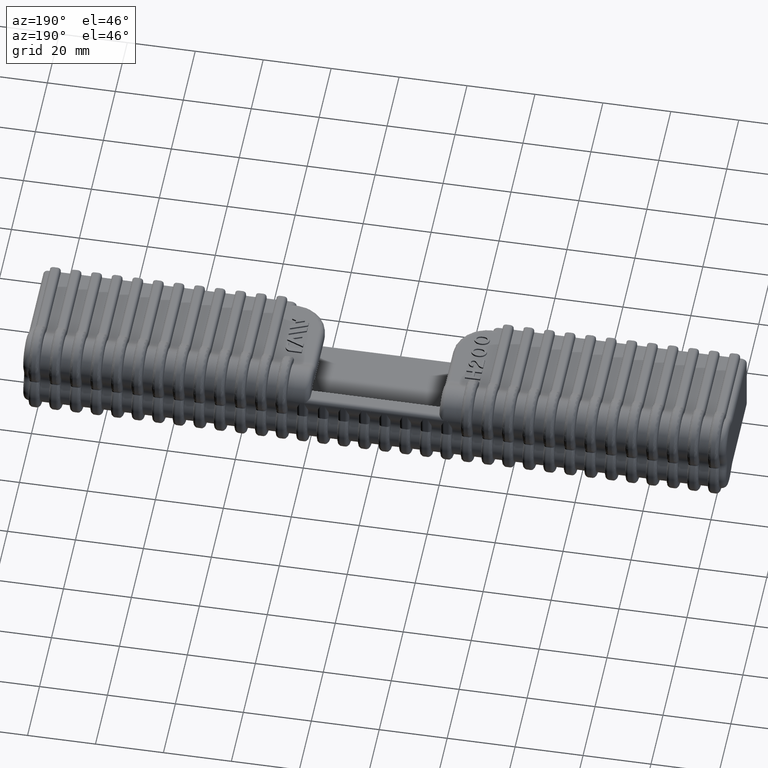
[diagram: clean part render]
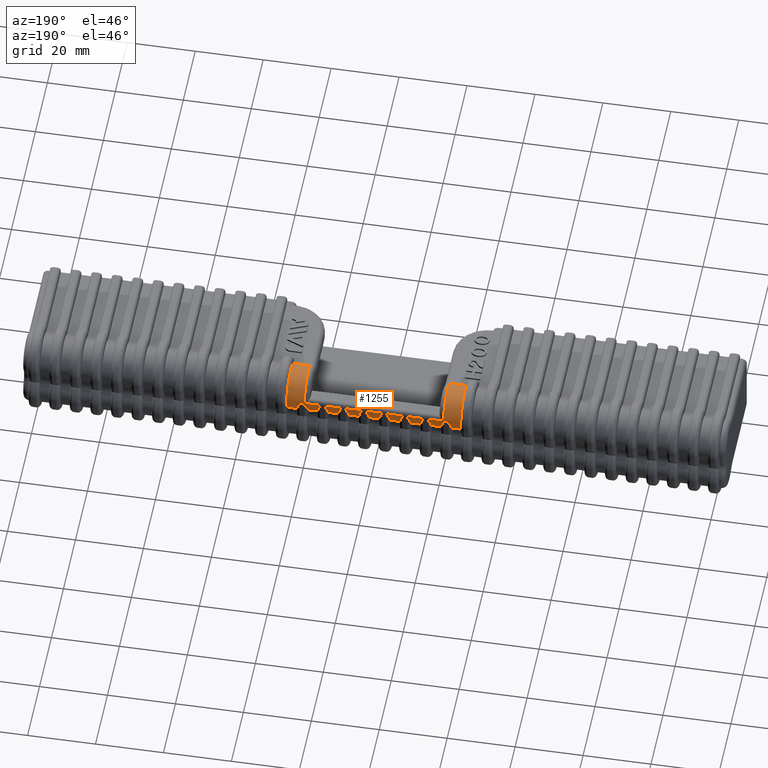
[diagram: same view with one face highlighted and labeled with its STEP entity id]
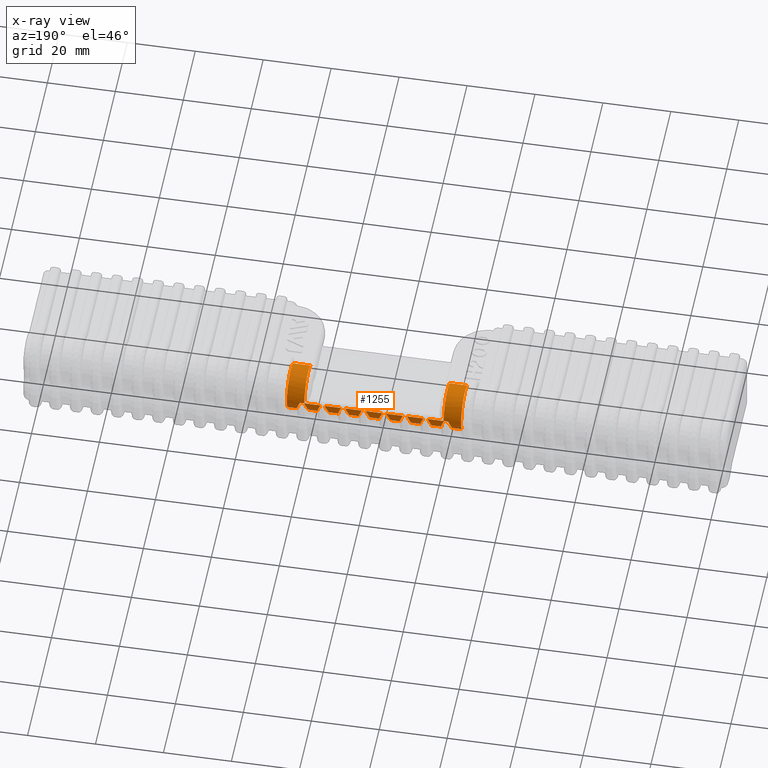
[diagram: x-ray of the same camera — body ghosted, the highlighted face saturated]
A machine part, auxiliary view. The second image highlights one B-rep face of the part: STEP entity #1255.
The next image is the same camera in x-ray: the body ghosted, the highlighted face saturated — about 0% of this face is hidden behind the body in this view.
In plain terms, the highlighted cylindrical surface (edge-blend (fillet) strip) has radius 6.5 mm, axis along (1, -0, 0).
Its self-contained STEP definition (entity closure, byte-faithful):
#1255 = ADVANCED_FACE( '', ( #3309 ), #3310, .T. );
#3309 = FACE_OUTER_BOUND( '', #5531, .T. );
#3310 = CYLINDRICAL_SURFACE( '', #5532, 6.50000000000001 );
#5531 = EDGE_LOOP( '', ( #13861, #13862, #13863, #13864, #13865, #13866, #13867, #13868, #13869, #13870, #13871, #13872, #13873, #13874, #13875, #13876, #13877, #13878, #13879, #13880, #13881, #13882, #13883, #13884, #13885, #13886, #13887, #13888, #13889, #13890, #13891, #13892, #13893, #13894, #13895, #13896, #13897, #13898, #13899, #13900, #13901, #13902, #13903, #13904, #13905, #13906, #13907, #13908, #13909, #13910, #13911, #13912, #13913, #13914, #13915, #13916 ) );
#5532 = AXIS2_PLACEMENT_3D( '', #13917, #13918, #13919 );
#13861 = ORIENTED_EDGE( '', *, *, #17715, .T. );
#13862 = ORIENTED_EDGE( '', *, *, #16381, .T. );
#13863 = ORIENTED_EDGE( '', *, *, #15929, .T. );
#13864 = ORIENTED_EDGE( '', *, *, #17801, .T. );
#13865 = ORIENTED_EDGE( '', *, *, #18030, .T. );
#13866 = ORIENTED_EDGE( '', *, *, #16948, .F. );
#13867 = ORIENTED_EDGE( '', *, *, #15616, .T. );
#13868 = ORIENTED_EDGE( '', *, *, #16955, .T. );
#13869 = ORIENTED_EDGE( '', *, *, #17674, .T. );
#13870 = ORIENTED_EDGE( '', *, *, #16953, .F. );
#13871 = ORIENTED_EDGE( '', *, *, #18031, .T. );
#13872 = ORIENTED_EDGE( '', *, *, #16578, .F. );
#13873 = ORIENTED_EDGE( '', *, *, #17675, .T. );
#13874 = ORIENTED_EDGE( '', *, *, #16573, .T. );
#13875 = ORIENTED_EDGE( '', *, *, #16566, .T. );
#13876 = ORIENTED_EDGE( '', *, *, #16572, .F. );
#13877 = ORIENTED_EDGE( '', *, *, #18032, .T. );
#13878 = ORIENTED_EDGE( '', *, *, #16944, .F. );
#13879 = ORIENTED_EDGE( '', *, *, #16469, .T. );
#13880 = ORIENTED_EDGE( '', *, *, #16580, .T. );
#13881 = ORIENTED_EDGE( '', *, *, #16463, .T. );
#13882 = ORIENTED_EDGE( '', *, *, #16947, .F. );
#13883 = ORIENTED_EDGE( '', *, *, #18033, .T. );
#13884 = ORIENTED_EDGE( '', *, *, #16442, .F. );
#13885 = ORIENTED_EDGE( '', *, *, #16459, .T. );
#13886 = ORIENTED_EDGE( '', *, *, #16434, .T. );
#13887 = ORIENTED_EDGE( '', *, *, #16460, .T. );
#13888 = ORIENTED_EDGE( '', *, *, #16432, .F. );
#13889 = ORIENTED_EDGE( '', *, *, #18034, .T. );
#13890 = ORIENTED_EDGE( '', *, *, #16935, .F. );
#13891 = ORIENTED_EDGE( '', *, *, #17677, .T. );
#13892 = ORIENTED_EDGE( '', *, *, #16444, .T. );
#13893 = ORIENTED_EDGE( '', *, *, #17678, .T. );
#13894 = ORIENTED_EDGE( '', *, *, #16942, .F. );
#13895 = ORIENTED_EDGE( '', *, *, #18035, .T. );
#13896 = ORIENTED_EDGE( '', *, *, #16607, .F. );
#13897 = ORIENTED_EDGE( '', *, *, #17680, .T. );
#13898 = ORIENTED_EDGE( '', *, *, #16930, .T. );
#13899 = ORIENTED_EDGE( '', *, *, #17681, .T. );
#13900 = ORIENTED_EDGE( '', *, *, #16928, .F. );
#13901 = ORIENTED_EDGE( '', *, *, #18036, .T. );
#13902 = ORIENTED_EDGE( '', *, *, #15702, .F. );
#13903 = ORIENTED_EDGE( '', *, *, #15658, .T. );
#13904 = ORIENTED_EDGE( '', *, *, #16613, .T. );
#13905 = ORIENTED_EDGE( '', *, *, #15647, .T. );
#13906 = ORIENTED_EDGE( '', *, *, #16615, .F. );
#13907 = ORIENTED_EDGE( '', *, *, #18037, .T. );
#13908 = ORIENTED_EDGE( '', *, *, #16621, .F. );
#13909 = ORIENTED_EDGE( '', *, *, #15653, .T. );
#13910 = ORIENTED_EDGE( '', *, *, #15705, .T. );
#13911 = ORIENTED_EDGE( '', *, *, #17682, .T. );
#13912 = ORIENTED_EDGE( '', *, *, #15710, .F. );
#13913 = ORIENTED_EDGE( '', *, *, #18038, .T. );
#13914 = ORIENTED_EDGE( '', *, *, #17789, .F. );
#13915 = ORIENTED_EDGE( '', *, *, #18039, .T. );
#13916 = ORIENTED_EDGE( '', *, *, #16376, .T. );
#13917 = CARTESIAN_POINT( '', ( 103.500000000000, 28.7979184719829, 5.29791847198289 ) );
#13918 = DIRECTION( '', ( 1.00000000000000, -5.15199234088901E-017, 2.24223605031627E-016 ) );
#13919 = DIRECTION( '', ( -5.15199234088901E-017, -1.00000000000000, 1.83690953073357E-016 ) );
#15616 = EDGE_CURVE( '', #18995, #18993, #18996, .T. );
#15647 = EDGE_CURVE( '', #19053, #19051, #19054, .T. );
#15653 = EDGE_CURVE( '', #19065, #19063, #19066, .T. );
#15658 = EDGE_CURVE( '', #19075, #19073, #19076, .T. );
#15702 = EDGE_CURVE( '', #19075, #19149, #19150, .F. );
#15705 = EDGE_CURVE( '', #19063, #19153, #19154, .T. );
#15710 = EDGE_CURVE( '', #19161, #19163, #19164, .F. );
#15929 = EDGE_CURVE( '', #19528, #19529, #19530, .F. );
#16376 = EDGE_CURVE( '', #20264, #20262, #20265, .F. );
#16381 = EDGE_CURVE( '', #20270, #19528, #20271, .F. );
#16432 = EDGE_CURVE( '', #20352, #20354, #20355, .F. );
#16434 = EDGE_CURVE( '', #20357, #20358, #20359, .T. );
#16442 = EDGE_CURVE( '', #20368, #20370, #20371, .F. );
#16444 = EDGE_CURVE( '', #20373, #20374, #20375, .T. );
#16459 = EDGE_CURVE( '', #20368, #20357, #20400, .T. );
#16460 = EDGE_CURVE( '', #20358, #20354, #20401, .T. );
#16463 = EDGE_CURVE( '', #20407, #20405, #20408, .T. );
#16469 = EDGE_CURVE( '', #20418, #20416, #20419, .T. );
#16566 = EDGE_CURVE( '', #20583, #20581, #20584, .T. );
#16572 = EDGE_CURVE( '', #20590, #20581, #20592, .F. );
#16573 = EDGE_CURVE( '', #20593, #20583, #20594, .T. );
#16578 = EDGE_CURVE( '', #20599, #20601, #20602, .F. );
#16580 = EDGE_CURVE( '', #20416, #20407, #20604, .T. );
#16607 = EDGE_CURVE( '', #20644, #20646, #20647, .F. );
#16613 = EDGE_CURVE( '', #19073, #19053, #20656, .T. );
#16615 = EDGE_CURVE( '', #20657, #19051, #20659, .F. );
#16621 = EDGE_CURVE( '', #19065, #20668, #20669, .F. );
#16928 = EDGE_CURVE( '', #21198, #21200, #21201, .F. );
#16930 = EDGE_CURVE( '', #21203, #21204, #21205, .T. );
#16935 = EDGE_CURVE( '', #21211, #21213, #21214, .F. );
#16942 = EDGE_CURVE( '', #21222, #21224, #21225, .F. );
#16944 = EDGE_CURVE( '', #20418, #21227, #21228, .F. );
#16947 = EDGE_CURVE( '', #21230, #20405, #21232, .F. );
#16948 = EDGE_CURVE( '', #18995, #21233, #21234, .F. );
#16953 = EDGE_CURVE( '', #21239, #21241, #21242, .F. );
#16955 = EDGE_CURVE( '', #18993, #21244, #21245, .T. );
#17674 = EDGE_CURVE( '', #21244, #21241, #22410, .T. );
#17675 = EDGE_CURVE( '', #20599, #20593, #22411, .T. );
#17677 = EDGE_CURVE( '', #21211, #20373, #22413, .T. );
#17678 = EDGE_CURVE( '', #20374, #21224, #22414, .T. );
#17680 = EDGE_CURVE( '', #20644, #21203, #22416, .T. );
#17681 = EDGE_CURVE( '', #21204, #21200, #22417, .T. );
#17682 = EDGE_CURVE( '', #19153, #19163, #22418, .T. );
#17715 = EDGE_CURVE( '', #20262, #20270, #22451, .F. );
#17789 = EDGE_CURVE( '', #22551, #22553, #22554, .T. );
#17801 = EDGE_CURVE( '', #19529, #22567, #22569, .T. );
#18030 = EDGE_CURVE( '', #22567, #21233, #22867, .T. );
#18031 = EDGE_CURVE( '', #21239, #20601, #22868, .T. );
#18032 = EDGE_CURVE( '', #20590, #21227, #22869, .T. );
#18033 = EDGE_CURVE( '', #21230, #20370, #22870, .T. );
#18034 = EDGE_CURVE( '', #20352, #21213, #22871, .T. );
#18035 = EDGE_CURVE( '', #21222, #20646, #22872, .T. );
#18036 = EDGE_CURVE( '', #21198, #19149, #22873, .T. );
#18037 = EDGE_CURVE( '', #20657, #20668, #22874, .T. );
#18038 = EDGE_CURVE( '', #19161, #22553, #22875, .T. );
#18039 = EDGE_CURVE( '', #22551, #20264, #22876, .F. );
#18993 = VERTEX_POINT( '', #24180 );
#18995 = VERTEX_POINT( '', #24182 );
#18996 = B_SPLINE_CURVE_WITH_KNOTS( '', 3, ( #24183, #24184, #24185, #24186, #24187, #24188, #24189, #24190, #24191, #24192, #24193, #24194, #24195, #24196 ), .UNSPECIFIED., .F., .F., ( 4, 2, 2, 2, 2, 2, 4 ), ( 3.03576608295941E-018, 0.000916803927325440, 0.00183360785465088, 0.00275041178197631, 0.00320881374563903, 0.00343801472747039, 0.00366721570930175 ), .UNSPECIFIED. );
#19051 = VERTEX_POINT( '', #24284 );
#19053 = VERTEX_POINT( '', #24287 );
#19054 = B_SPLINE_CURVE_WITH_KNOTS( '', 3, ( #24288, #24289, #24290, #24291, #24292, #24293, #24294, #24295, #24296, #24297, #24298, #24299, #24300, #24301 ), .UNSPECIFIED., .F., .F., ( 4, 2, 2, 2, 2, 2, 4 ), ( 2.03044177143890E-017, 0.000230615708598507, 0.000461231417196993, 0.000922462834393970, 0.00184492566878793, 0.00276738850318188, 0.00368985133757584 ), .UNSPECIFIED. );
#19063 = VERTEX_POINT( '', #24321 );
#19065 = VERTEX_POINT( '', #24323 );
#19066 = B_SPLINE_CURVE_WITH_KNOTS( '', 3, ( #24324, #24325, #24326, #24327, #24328, #24329, #24330, #24331, #24332, #24333, #24334, #24335, #24336, #24337 ), .UNSPECIFIED., .F., .F., ( 4, 2, 2, 2, 2, 2, 4 ), ( 2.16840434497102E-018, 0.000916803927325433, 0.00183360785465086, 0.00275041178197630, 0.00320881374563901, 0.00343801472747037, 0.00366721570930172 ), .UNSPECIFIED. );
#19073 = VERTEX_POINT( '', #24355 );
#19075 = VERTEX_POINT( '', #24357 );
#19076 = B_SPLINE_CURVE_WITH_KNOTS( '', 3, ( #24358, #24359, #24360, #24361, #24362, #24363, #24364, #24365, #24366, #24367, #24368, #24369, #24370, #24371 ), .UNSPECIFIED., .F., .F., ( 4, 2, 2, 2, 2, 2, 4 ), ( 4.33680868994201E-019, 0.000916803927325431, 0.00183360785465086, 0.00275041178197629, 0.00320881374563901, 0.00343801472747037, 0.00366721570930173 ), .UNSPECIFIED. );
#19149 = VERTEX_POINT( '', #24587 );
#19150 = ELLIPSE( '', #24588, 6.50892024898649, 6.50000000000001 );
#19153 = VERTEX_POINT( '', #24592 );
#19154 = LINE( '', #24593, #24594 );
#19161 = VERTEX_POINT( '', #24605 );
#19163 = VERTEX_POINT( '', #24607 );
#19164 = ELLIPSE( '', #24608, 6.50892024898649, 6.50000000000001 );
#19528 = VERTEX_POINT( '', #25572 );
#19529 = VERTEX_POINT( '', #25573 );
#19530 = LINE( '', #25574, #25575 );
#20262 = VERTEX_POINT( '', #27606 );
#20264 = VERTEX_POINT( '', #27619 );
#20265 = CIRCLE( '', #27620, 6.50000000000001 );
#20270 = VERTEX_POINT( '', #27625 );
#20271 = CIRCLE( '', #27626, 6.50000000000001 );
#20352 = VERTEX_POINT( '', #27865 );
#20354 = VERTEX_POINT( '', #27867 );
#20355 = ELLIPSE( '', #27868, 6.50892024898649, 6.50000000000001 );
#20357 = VERTEX_POINT( '', #27871 );
#20358 = VERTEX_POINT( '', #27872 );
#20359 = LINE( '', #27873, #27874 );
#20368 = VERTEX_POINT( '', #27887 );
#20370 = VERTEX_POINT( '', #27890 );
#20371 = ELLIPSE( '', #27891, 6.50892024898649, 6.50000000000001 );
#20373 = VERTEX_POINT( '', #27893 );
#20374 = VERTEX_POINT( '', #27894 );
#20375 = LINE( '', #27895, #27896 );
#20400 = B_SPLINE_CURVE_WITH_KNOTS( '', 3, ( #27945, #27946, #27947, #27948, #27949, #27950, #27951, #27952, #27953, #27954, #27955, #27956, #27957, #27958 ), .UNSPECIFIED., .F., .F., ( 4, 2, 2, 2, 2, 2, 4 ), ( 4.33680868994202E-019, 0.000916803927325436, 0.00183360785465087, 0.00275041178197631, 0.00320881374563903, 0.00343801472747038, 0.00366721570930174 ), .UNSPECIFIED. );
#20401 = B_SPLINE_CURVE_WITH_KNOTS( '', 3, ( #27959, #27960, #27961, #27962, #27963, #27964, #27965, #27966, #27967, #27968, #27969, #27970, #27971, #27972 ), .UNSPECIFIED., .F., .F., ( 4, 2, 2, 2, 2, 2, 4 ), ( 1.62036544705096E-017, 0.000230615708598508, 0.000461231417197001, 0.000922462834393983, 0.00184492566878795, 0.00276738850318191, 0.00368985133757588 ), .UNSPECIFIED. );
#20405 = VERTEX_POINT( '', #27985 );
#20407 = VERTEX_POINT( '', #27988 );
#20408 = B_SPLINE_CURVE_WITH_KNOTS( '', 3, ( #27989, #27990, #27991, #27992, #27993, #27994, #27995, #27996, #27997, #27998, #27999, #28000, #28001, #28002 ), .UNSPECIFIED., .F., .F., ( 4, 2, 2, 2, 2, 2, 4 ), ( 1.51478215358021E-017, 0.000230615708598508, 0.000461231417197001, 0.000922462834393985, 0.00184492566878796, 0.00276738850318193, 0.00368985133757590 ), .UNSPECIFIED. );
#20416 = VERTEX_POINT( '', #28021 );
#20418 = VERTEX_POINT( '', #28023 );
#20419 = B_SPLINE_CURVE_WITH_KNOTS( '', 3, ( #28024, #28025, #28026, #28027, #28028, #28029, #28030, #28031, #28032, #28033, #28034, #28035, #28036, #28037 ), .UNSPECIFIED., .F., .F., ( 4, 2, 2, 2, 2, 2, 4 ), ( 4.33680868994202E-019, 0.000916803927325436, 0.00183360785465087, 0.00275041178197631, 0.00320881374563902, 0.00343801472747038, 0.00366721570930174 ), .UNSPECIFIED. );
#20581 = VERTEX_POINT( '', #28488 );
#20583 = VERTEX_POINT( '', #28491 );
#20584 = B_SPLINE_CURVE_WITH_KNOTS( '', 3, ( #28492, #28493, #28494, #28495, #28496, #28497, #28498, #28499, #28500, #28501, #28502, #28503, #28504, #28505 ), .UNSPECIFIED., .F., .F., ( 4, 2, 2, 2, 2, 2, 4 ), ( 1.64570318839533E-017, 0.000230615708598509, 0.000461231417197001, 0.000922462834393986, 0.00184492566878796, 0.00276738850318193, 0.00368985133757590 ), .UNSPECIFIED. );
#20590 = VERTEX_POINT( '', #28524 );
#20592 = ELLIPSE( '', #28526, 6.50892024898649, 6.50000000000001 );
#20593 = VERTEX_POINT( '', #28527 );
#20594 = LINE( '', #28528, #28529 );
#20599 = VERTEX_POINT( '', #28536 );
#20601 = VERTEX_POINT( '', #28539 );
#20602 = ELLIPSE( '', #28540, 6.50892024898649, 6.50000000000001 );
#20604 = LINE( '', #28542, #28543 );
#20644 = VERTEX_POINT( '', #28657 );
#20646 = VERTEX_POINT( '', #28660 );
#20647 = ELLIPSE( '', #28661, 6.50892024898649, 6.50000000000001 );
#20656 = LINE( '', #28674, #28675 );
#20657 = VERTEX_POINT( '', #28676 );
#20659 = ELLIPSE( '', #28678, 6.50892024898649, 6.50000000000001 );
#20668 = VERTEX_POINT( '', #28701 );
#20669 = ELLIPSE( '', #28702, 6.50892024898649, 6.50000000000001 );
#21198 = VERTEX_POINT( '', #29790 );
#21200 = VERTEX_POINT( '', #29792 );
#21201 = ELLIPSE( '', #29793, 6.50892024898649, 6.50000000000001 );
#21203 = VERTEX_POINT( '', #29796 );
#21204 = VERTEX_POINT( '', #29797 );
#21205 = LINE( '', #29798, #29799 );
#21211 = VERTEX_POINT( '', #29808 );
#21213 = VERTEX_POINT( '', #29811 );
#21214 = ELLIPSE( '', #29812, 6.50892024898649, 6.50000000000001 );
#21222 = VERTEX_POINT( '', #29826 );
#21224 = VERTEX_POINT( '', #29828 );
#21225 = ELLIPSE( '', #29829, 6.50892024898649, 6.50000000000001 );
#21227 = VERTEX_POINT( '', #29832 );
#21228 = ELLIPSE( '', #29833, 6.50892024898649, 6.50000000000001 );
#21230 = VERTEX_POINT( '', #29835 );
#21232 = ELLIPSE( '', #29837, 6.50892024898649, 6.50000000000001 );
#21233 = VERTEX_POINT( '', #29838 );
#21234 = ELLIPSE( '', #29839, 6.50892024898649, 6.50000000000001 );
#21239 = VERTEX_POINT( '', #29846 );
#21241 = VERTEX_POINT( '', #29848 );
#21242 = ELLIPSE( '', #29849, 6.50892024898649, 6.50000000000001 );
#21244 = VERTEX_POINT( '', #29852 );
#21245 = LINE( '', #29853, #29854 );
#22410 = B_SPLINE_CURVE_WITH_KNOTS( '', 3, ( #33566, #33567, #33568, #33569, #33570, #33571, #33572, #33573, #33574, #33575, #33576, #33577, #33578, #33579 ), .UNSPECIFIED., .F., .F., ( 4, 2, 2, 2, 2, 2, 4 ), ( 1.59933602078778E-017, 0.000230615708598508, 0.000461231417197000, 0.000922462834393987, 0.00184492566878796, 0.00276738850318194, 0.00368985133757591 ), .UNSPECIFIED. );
#22411 = B_SPLINE_CURVE_WITH_KNOTS( '', 3, ( #33580, #33581, #33582, #33583, #33584, #33585, #33586, #33587, #33588, #33589, #33590, #33591, #33592, #33593 ), .UNSPECIFIED., .F., .F., ( 4, 2, 2, 2, 2, 2, 4 ), ( 4.33680868994202E-019, 0.000916803927325439, 0.00183360785465088, 0.00275041178197632, 0.00320881374563903, 0.00343801472747039, 0.00366721570930175 ), .UNSPECIFIED. );
#22413 = B_SPLINE_CURVE_WITH_KNOTS( '', 3, ( #33604, #33605, #33606, #33607, #33608, #33609, #33610, #33611, #33612, #33613, #33614, #33615, #33616, #33617 ), .UNSPECIFIED., .F., .F., ( 4, 2, 2, 2, 2, 2, 4 ), ( 4.33680868994202E-019, 0.000916803927325434, 0.00183360785465087, 0.00275041178197630, 0.00320881374563902, 0.00343801472747038, 0.00366721570930173 ), .UNSPECIFIED. );
#22414 = B_SPLINE_CURVE_WITH_KNOTS( '', 3, ( #33618, #33619, #33620, #33621, #33622, #33623, #33624, #33625, #33626, #33627, #33628, #33629, #33630, #33631 ), .UNSPECIFIED., .F., .F., ( 4, 2, 2, 2, 2, 2, 4 ), ( 1.70409543285327E-017, 0.000230615708598508, 0.000461231417196999, 0.000922462834393979, 0.00184492566878794, 0.00276738850318190, 0.00368985133757586 ), .UNSPECIFIED. );
#22416 = B_SPLINE_CURVE_WITH_KNOTS( '', 3, ( #33642, #33643, #33644, #33645, #33646, #33647, #33648, #33649, #33650, #33651, #33652, #33653, #33654, #33655 ), .UNSPECIFIED., .F., .F., ( 4, 2, 2, 2, 2, 2, 4 ), ( 4.33680868994201E-019, 0.000916803927325432, 0.00183360785465086, 0.00275041178197630, 0.00320881374563901, 0.00343801472747037, 0.00366721570930173 ), .UNSPECIFIED. );
#22417 = B_SPLINE_CURVE_WITH_KNOTS( '', 3, ( #33656, #33657, #33658, #33659, #33660, #33661, #33662, #33663, #33664, #33665, #33666, #33667, #33668, #33669 ), .UNSPECIFIED., .F., .F., ( 4, 2, 2, 2, 2, 2, 4 ), ( 1.89434662989387E-017, 0.000230615708598507, 0.000461231417196994, 0.000922462834393974, 0.00184492566878793, 0.00276738850318189, 0.00368985133757585 ), .UNSPECIFIED. );
#22418 = B_SPLINE_CURVE_WITH_KNOTS( '', 3, ( #33670, #33671, #33672, #33673, #33674, #33675, #33676, #33677, #33678, #33679, #33680, #33681, #33682, #33683 ), .UNSPECIFIED., .F., .F., ( 4, 2, 2, 2, 2, 2, 4 ), ( 1.43048962453820E-017, 0.000230615708598502, 0.000461231417196990, 0.000922462834393967, 0.00184492566878793, 0.00276738850318189, 0.00368985133757585 ), .UNSPECIFIED. );
#22451 = LINE( '', #34004, #34005 );
#22551 = VERTEX_POINT( '', #34229 );
#22553 = VERTEX_POINT( '', #34236 );
#22554 = CIRCLE( '', #34237, 6.50000000000000 );
#22567 = VERTEX_POINT( '', #34259 );
#22569 = CIRCLE( '', #34264, 6.50000000000001 );
#22867 = LINE( '', #34810, #34811 );
#22868 = LINE( '', #34812, #34813 );
#22869 = LINE( '', #34814, #34815 );
#22870 = LINE( '', #34816, #34817 );
#22871 = LINE( '', #34818, #34819 );
#22872 = LINE( '', #34820, #34821 );
#22873 = LINE( '', #34822, #34823 );
#22874 = LINE( '', #34824, #34825 );
#22875 = LINE( '', #34826, #34827 );
#22876 = LINE( '', #34828, #34829 );
#24180 = CARTESIAN_POINT( '', ( 21.8555287543817, 35.2979181386937, 5.29999999999999 ) );
#24182 = CARTESIAN_POINT( '', ( 22.7896649680397, 34.3523359562429, 1.92175994333732 ) );
#24183 = CARTESIAN_POINT( '', ( 22.7896649680397, 34.3523359562429, 1.92175994333732 ) );
#24184 = CARTESIAN_POINT( '', ( 22.7812247189997, 34.5133855018542, 2.18671681795843 ) );
#24185 = CARTESIAN_POINT( '', ( 22.7368034976742, 34.6513866492564, 2.45597729487422 ) );
#24186 = CARTESIAN_POINT( '', ( 22.6109543677433, 34.8879479141989, 3.00635552293682 ) );
#24187 = CARTESIAN_POINT( '', ( 22.5280480208607, 34.9865540857058, 3.28882210237741 ) );
#24188 = CARTESIAN_POINT( '', ( 22.3436957552764, 35.1420870711160, 3.85320266339777 ) );
#24189 = CARTESIAN_POINT( '', ( 22.2415782611205, 35.1998696269532, 4.13662839938998 ) );
#24190 = CARTESIAN_POINT( '', ( 22.0825477125932, 35.2582322982029, 4.56631846338386 ) );
#24191 = CARTESIAN_POINT( '', ( 22.0283403236652, 35.2729026364371, 4.71011129399843 ) );
#24192 = CARTESIAN_POINT( '', ( 21.9495981490442, 35.2877100550863, 4.92665103470099 ) );
#24193 = CARTESIAN_POINT( '', ( 21.9235521400352, 35.2914540517746, 4.99896404183639 ) );
#24194 = CARTESIAN_POINT( '', ( 21.8772776479830, 35.2965460826034, 5.14554637543637 ) );
#24195 = CARTESIAN_POINT( '', ( 21.8551284522501, 35.2979440093668, 5.21921349848172 ) );
#24196 = CARTESIAN_POINT( '', ( 21.8555287543818, 35.2979181386937, 5.30000000000003 ) );
#24284 = CARTESIAN_POINT( '', ( -16.7296649680397, 34.3523359562430, 1.92175994333733 ) );
#24287 = CARTESIAN_POINT( '', ( -15.7955287543818, 35.2979181386937, 5.29999999999998 ) );
#24288 = CARTESIAN_POINT( '', ( -15.7955287543818, 35.2979181386937, 5.29999999999997 ) );
#24289 = CARTESIAN_POINT( '', ( -15.7951323149360, 35.2979437597297, 5.21999304185542 ) );
#24290 = CARTESIAN_POINT( '', ( -15.8170643072604, 35.2965640460445, 5.14630491466204 ) );
#24291 = CARTESIAN_POINT( '', ( -15.8632994337740, 35.2914873167120, 4.99968261431684 ) );
#24292 = CARTESIAN_POINT( '', ( -15.8893831600510, 35.2877459181643, 4.92724975039162 ) );
#24293 = CARTESIAN_POINT( '', ( -15.9682774570833, 35.2729235467560, 4.71026924739185 ) );
#24294 = CARTESIAN_POINT( '', ( -16.0223969686137, 35.2582671342603, 4.56671899950770 ) );
#24295 = CARTESIAN_POINT( '', ( -16.1809202283814, 35.2001519041980, 4.13841982757700 ) );
#24296 = CARTESIAN_POINT( '', ( -16.2828294318964, 35.1426249988668, 3.85565791520660 ) );
#24297 = CARTESIAN_POINT( '', ( -16.4670500919524, 34.9875870329243, 3.29207213399746 ) );
#24298 = CARTESIAN_POINT( '', ( -16.5502418338444, 34.8890296439853, 3.00910797062454 ) );
#24299 = CARTESIAN_POINT( '', ( -16.6766722409920, 34.6518892952633, 2.45691259008062 ) );
#24300 = CARTESIAN_POINT( '', ( -16.7212152693740, 34.5135658114537, 2.18701346125389 ) );
#24301 = CARTESIAN_POINT( '', ( -16.7296649680397, 34.3523359562429, 1.92175994333733 ) );
#24321 = CARTESIAN_POINT( '', ( -20.5644712456182, 35.2979181386937, 5.29999999999998 ) );
#24323 = CARTESIAN_POINT( '', ( -19.6303350319603, 34.3523359562429, 1.92175994333732 ) );
#24324 = CARTESIAN_POINT( '', ( -19.6303350319603, 34.3523359562430, 1.92175994333732 ) );
#24325 = CARTESIAN_POINT( '', ( -19.6387752810003, 34.5133855018542, 2.18671681795842 ) );
#24326 = CARTESIAN_POINT( '', ( -19.6831965023258, 34.6513866492564, 2.45597729487421 ) );
#24327 = CARTESIAN_POINT( '', ( -19.8090456322567, 34.8879479141989, 3.00635552293681 ) );
#24328 = CARTESIAN_POINT( '', ( -19.8919519791393, 34.9865540857058, 3.28882210237739 ) );
#24329 = CARTESIAN_POINT( '', ( -20.0763042447236, 35.1420870711160, 3.85320266339775 ) );
#24330 = CARTESIAN_POINT( '', ( -20.1784217388795, 35.1998696269532, 4.13662839938995 ) );
#24331 = CARTESIAN_POINT( '', ( -20.3374522874067, 35.2582322982030, 4.56631846338383 ) );
#24332 = CARTESIAN_POINT( '', ( -20.3916596763348, 35.2729026364371, 4.71011129399841 ) );
#24333 = CARTESIAN_POINT( '', ( -20.4704018509558, 35.2877100550863, 4.92665103470098 ) );
#24334 = CARTESIAN_POINT( '', ( -20.4964478599648, 35.2914540517746, 4.99896404183637 ) );
#24335 = CARTESIAN_POINT( '', ( -20.5427223520170, 35.2965460826034, 5.14554637543636 ) );
#24336 = CARTESIAN_POINT( '', ( -20.5648715477497, 35.2979440093668, 5.21921349848172 ) );
#24337 = CARTESIAN_POINT( '', ( -20.5644712456181, 35.2979181386937, 5.30000000000002 ) );
#24355 = CARTESIAN_POINT( '', ( -14.5044712456182, 35.2979181386937, 5.29999999999998 ) );
#24357 = CARTESIAN_POINT( '', ( -13.5703350319603, 34.3523359562429, 1.92175994333732 ) );
#24358 = CARTESIAN_POINT( '', ( -13.5703350319603, 34.3523359562429, 1.92175994333732 ) );
#24359 = CARTESIAN_POINT( '', ( -13.5787752810003, 34.5133855018542, 2.18671681795842 ) );
#24360 = CARTESIAN_POINT( '', ( -13.6231965023258, 34.6513866492564, 2.45597729487421 ) );
#24361 = CARTESIAN_POINT( '', ( -13.7490456322567, 34.8879479141989, 3.00635552293681 ) );
#24362 = CARTESIAN_POINT( '', ( -13.8319519791393, 34.9865540857058, 3.28882210237739 ) );
#24363 = CARTESIAN_POINT( '', ( -14.0163042447236, 35.1420870711160, 3.85320266339775 ) );
#24364 = CARTESIAN_POINT( '', ( -14.1184217388795, 35.1998696269532, 4.13662839938995 ) );
#24365 = CARTESIAN_POINT( '', ( -14.2774522874067, 35.2582322982030, 4.56631846338383 ) );
#24366 = CARTESIAN_POINT( '', ( -14.3316596763348, 35.2729026364371, 4.71011129399841 ) );
#24367 = CARTESIAN_POINT( '', ( -14.4104018509558, 35.2877100550863, 4.92665103470098 ) );
#24368 = CARTESIAN_POINT( '', ( -14.4364478599648, 35.2914540517746, 4.99896404183637 ) );
#24369 = CARTESIAN_POINT( '', ( -14.4827223520170, 35.2965460826034, 5.14554637543636 ) );
#24370 = CARTESIAN_POINT( '', ( -14.5048715477498, 35.2979440093668, 5.21921349848172 ) );
#24371 = CARTESIAN_POINT( '', ( -14.5044712456181, 35.2979181386937, 5.30000000000002 ) );
#24587 = CARTESIAN_POINT( '', ( -13.5627137342053, 34.2069129320424, 1.69336871770767 ) );
#24588 = AXIS2_PLACEMENT_3D( '', #35969, #35970, #35971 );
#24592 = CARTESIAN_POINT( '', ( -21.8555287543818, 35.2979181386937, 5.29999999999998 ) );
#24593 = CARTESIAN_POINT( '', ( 103.500000000000, 35.2979181386937, 5.30000000000000 ) );
#24594 = VECTOR( '', #35976, 1000.00000000000 );
#24605 = CARTESIAN_POINT( '', ( -22.7972862657946, 34.2069129320424, 1.69336871770768 ) );
#24607 = CARTESIAN_POINT( '', ( -22.7896649680397, 34.3523359562430, 1.92175994333733 ) );
#24608 = AXIS2_PLACEMENT_3D( '', #35984, #35985, #35986 );
#25572 = CARTESIAN_POINT( '', ( 20.5000000000000, 24.9928257033777, 10.5677637279946 ) );
#25573 = CARTESIAN_POINT( '', ( 25.6456659972905, 24.9928257033777, 10.5677637279946 ) );
#25574 = CARTESIAN_POINT( '', ( 103.500000000000, 24.9928257033777, 10.5677637279946 ) );
#25575 = VECTOR( '', #36238, 1000.00000000000 );
#27606 = CARTESIAN_POINT( '', ( -20.5000000000000, 35.2979179706847, 5.30047128936234 ) );
#27619 = CARTESIAN_POINT( '', ( -20.5000000000000, 24.9928257033777, 10.5677637279946 ) );
#27620 = AXIS2_PLACEMENT_3D( '', #36713, #36714, #36715 );
#27625 = CARTESIAN_POINT( '', ( 20.5000000000000, 35.2979179706847, 5.30047128936234 ) );
#27626 = AXIS2_PLACEMENT_3D( '', #36728, #36729, #36730 );
#27865 = CARTESIAN_POINT( '', ( 1.44271373420535, 34.2069129320424, 1.69336871770767 ) );
#27867 = CARTESIAN_POINT( '', ( 1.45033503196031, 34.3523359562430, 1.92175994333733 ) );
#27868 = AXIS2_PLACEMENT_3D( '', #36787, #36788, #36789 );
#27871 = CARTESIAN_POINT( '', ( 3.67552875438172, 35.2979181386937, 5.29999999999998 ) );
#27872 = CARTESIAN_POINT( '', ( 2.38447124561828, 35.2979181386937, 5.29999999999998 ) );
#27873 = CARTESIAN_POINT( '', ( 103.500000000000, 35.2979181386937, 5.30000000000000 ) );
#27874 = VECTOR( '', #36791, 1000.00000000000 );
#27887 = CARTESIAN_POINT( '', ( 4.60966496803970, 34.3523359562429, 1.92175994333732 ) );
#27890 = CARTESIAN_POINT( '', ( 4.61728626579467, 34.2069129320424, 1.69336871770767 ) );
#27891 = AXIS2_PLACEMENT_3D( '', #36803, #36804, #36805 );
#27893 = CARTESIAN_POINT( '', ( -2.38447124561825, 35.2979181386937, 5.29999999999998 ) );
#27894 = CARTESIAN_POINT( '', ( -3.67552875438174, 35.2979181386937, 5.29999999999998 ) );
#27895 = CARTESIAN_POINT( '', ( 103.500000000000, 35.2979181386937, 5.30000000000000 ) );
#27896 = VECTOR( '', #36809, 1000.00000000000 );
#27945 = CARTESIAN_POINT( '', ( 4.60966496803970, 34.3523359562429, 1.92175994333732 ) );
#27946 = CARTESIAN_POINT( '', ( 4.60122471899967, 34.5133855018542, 2.18671681795843 ) );
#27947 = CARTESIAN_POINT( '', ( 4.55680349767422, 34.6513866492564, 2.45597729487421 ) );
#27948 = CARTESIAN_POINT( '', ( 4.43095436774330, 34.8879479141989, 3.00635552293681 ) );
#27949 = CARTESIAN_POINT( '', ( 4.34804802086066, 34.9865540857058, 3.28882210237740 ) );
#27950 = CARTESIAN_POINT( '', ( 4.16369575527640, 35.1420870711160, 3.85320266339776 ) );
#27951 = CARTESIAN_POINT( '', ( 4.06157826112045, 35.1998696269532, 4.13662839938997 ) );
#27952 = CARTESIAN_POINT( '', ( 3.90254771259324, 35.2582322982029, 4.56631846338384 ) );
#27953 = CARTESIAN_POINT( '', ( 3.84834032366515, 35.2729026364371, 4.71011129399842 ) );
#27954 = CARTESIAN_POINT( '', ( 3.76959814904417, 35.2877100550863, 4.92665103470098 ) );
#27955 = CARTESIAN_POINT( '', ( 3.74355214003517, 35.2914540517746, 4.99896404183638 ) );
#27956 = CARTESIAN_POINT( '', ( 3.69727764798296, 35.2965460826034, 5.14554637543636 ) );
#27957 = CARTESIAN_POINT( '', ( 3.67512845225019, 35.2979440093668, 5.21921349848174 ) );
#27958 = CARTESIAN_POINT( '', ( 3.67552875438188, 35.2979181386937, 5.30000000000004 ) );
#27959 = CARTESIAN_POINT( '', ( 2.38447124561827, 35.2979181386937, 5.29999999999997 ) );
#27960 = CARTESIAN_POINT( '', ( 2.38486768506412, 35.2979437597296, 5.21999304185542 ) );
#27961 = CARTESIAN_POINT( '', ( 2.36293569273969, 35.2965640460445, 5.14630491466205 ) );
#27962 = CARTESIAN_POINT( '', ( 2.31670056622605, 35.2914873167120, 4.99968261431684 ) );
#27963 = CARTESIAN_POINT( '', ( 2.29061683994905, 35.2877459181643, 4.92724975039163 ) );
#27964 = CARTESIAN_POINT( '', ( 2.21172254291674, 35.2729235467560, 4.71026924739186 ) );
#27965 = CARTESIAN_POINT( '', ( 2.15760303138633, 35.2582671342603, 4.56671899950771 ) );
#27966 = CARTESIAN_POINT( '', ( 1.99907977161866, 35.2001519041980, 4.13841982757701 ) );
#27967 = CARTESIAN_POINT( '', ( 1.89717056810357, 35.1426249988668, 3.85565791520661 ) );
#27968 = CARTESIAN_POINT( '', ( 1.71294990804761, 34.9875870329243, 3.29207213399747 ) );
#27969 = CARTESIAN_POINT( '', ( 1.62975816615557, 34.8890296439853, 3.00910797062455 ) );
#27970 = CARTESIAN_POINT( '', ( 1.50332775900805, 34.6518892952633, 2.45691259008063 ) );
#27971 = CARTESIAN_POINT( '', ( 1.45878473062602, 34.5135658114537, 2.18701346125389 ) );
#27972 = CARTESIAN_POINT( '', ( 1.45033503196030, 34.3523359562429, 1.92175994333733 ) );
#27985 = CARTESIAN_POINT( '', ( 7.51033503196029, 34.3523359562429, 1.92175994333732 ) );
#27988 = CARTESIAN_POINT( '', ( 8.44447124561828, 35.2979181386937, 5.29999999999998 ) );
#27989 = CARTESIAN_POINT( '', ( 8.44447124561827, 35.2979181386937, 5.29999999999997 ) );
#27990 = CARTESIAN_POINT( '', ( 8.44486768506412, 35.2979437597296, 5.21999304185542 ) );
#27991 = CARTESIAN_POINT( '', ( 8.42293569273967, 35.2965640460445, 5.14630491466205 ) );
#27992 = CARTESIAN_POINT( '', ( 8.37670056622603, 35.2914873167120, 4.99968261431685 ) );
#27993 = CARTESIAN_POINT( '', ( 8.35061683994903, 35.2877459181642, 4.92724975039163 ) );
#27994 = CARTESIAN_POINT( '', ( 8.27172254291672, 35.2729235467560, 4.71026924739186 ) );
#27995 = CARTESIAN_POINT( '', ( 8.21760303138631, 35.2582671342603, 4.56671899950771 ) );
#27996 = CARTESIAN_POINT( '', ( 8.05907977161865, 35.2001519041980, 4.13841982757701 ) );
#27997 = CARTESIAN_POINT( '', ( 7.95717056810355, 35.1426249988668, 3.85565791520661 ) );
#27998 = CARTESIAN_POINT( '', ( 7.77294990804759, 34.9875870329243, 3.29207213399747 ) );
#27999 = CARTESIAN_POINT( '', ( 7.68975816615555, 34.8890296439853, 3.00910797062454 ) );
#28000 = CARTESIAN_POINT( '', ( 7.56332775900803, 34.6518892952633, 2.45691259008062 ) );
#28001 = CARTESIAN_POINT( '', ( 7.51878473062600, 34.5135658114537, 2.18701346125390 ) );
#28002 = CARTESIAN_POINT( '', ( 7.51033503196028, 34.3523359562429, 1.92175994333733 ) );
#28021 = CARTESIAN_POINT( '', ( 9.73552875438172, 35.2979181386937, 5.29999999999998 ) );
#28023 = CARTESIAN_POINT( '', ( 10.6696649680397, 34.3523359562429, 1.92175994333732 ) );
#28024 = CARTESIAN_POINT( '', ( 10.6696649680397, 34.3523359562429, 1.92175994333732 ) );
#28025 = CARTESIAN_POINT( '', ( 10.6612247189997, 34.5133855018542, 2.18671681795843 ) );
#28026 = CARTESIAN_POINT( '', ( 10.6168034976742, 34.6513866492564, 2.45597729487421 ) );
#28027 = CARTESIAN_POINT( '', ( 10.4909543677433, 34.8879479141989, 3.00635552293682 ) );
#28028 = CARTESIAN_POINT( '', ( 10.4080480208607, 34.9865540857058, 3.28882210237740 ) );
#28029 = CARTESIAN_POINT( '', ( 10.2236957552764, 35.1420870711160, 3.85320266339776 ) );
#28030 = CARTESIAN_POINT( '', ( 10.1215782611205, 35.1998696269532, 4.13662839938996 ) );
#28031 = CARTESIAN_POINT( '', ( 9.96254771259325, 35.2582322982029, 4.56631846338384 ) );
#28032 = CARTESIAN_POINT( '', ( 9.90834032366516, 35.2729026364371, 4.71011129399842 ) );
#28033 = CARTESIAN_POINT( '', ( 9.82959814904419, 35.2877100550863, 4.92665103470098 ) );
#28034 = CARTESIAN_POINT( '', ( 9.80355214003518, 35.2914540517746, 4.99896404183638 ) );
#28035 = CARTESIAN_POINT( '', ( 9.75727764798297, 35.2965460826034, 5.14554637543636 ) );
#28036 = CARTESIAN_POINT( '', ( 9.73512845225019, 35.2979440093668, 5.21921349848174 ) );
#28037 = CARTESIAN_POINT( '', ( 9.73552875438187, 35.2979181386937, 5.30000000000004 ) );
#28488 = CARTESIAN_POINT( '', ( 13.5703350319603, 34.3523359562429, 1.92175994333732 ) );
#28491 = CARTESIAN_POINT( '', ( 14.5044712456183, 35.2979181386937, 5.29999999999999 ) );
#28492 = CARTESIAN_POINT( '', ( 14.5044712456183, 35.2979181386937, 5.29999999999997 ) );
#28493 = CARTESIAN_POINT( '', ( 14.5048676850641, 35.2979437597296, 5.21999304185542 ) );
#28494 = CARTESIAN_POINT( '', ( 14.4829356927397, 35.2965640460445, 5.14630491466206 ) );
#28495 = CARTESIAN_POINT( '', ( 14.4367005662260, 35.2914873167120, 4.99968261431685 ) );
#28496 = CARTESIAN_POINT( '', ( 14.4106168399490, 35.2877459181642, 4.92724975039164 ) );
#28497 = CARTESIAN_POINT( '', ( 14.3317225429167, 35.2729235467560, 4.71026924739187 ) );
#28498 = CARTESIAN_POINT( '', ( 14.2776030313863, 35.2582671342603, 4.56671899950772 ) );
#28499 = CARTESIAN_POINT( '', ( 14.1190797716186, 35.2001519041980, 4.13841982757702 ) );
#28500 = CARTESIAN_POINT( '', ( 14.0171705681036, 35.1426249988668, 3.85565791520661 ) );
#28501 = CARTESIAN_POINT( '', ( 13.8329499080476, 34.9875870329243, 3.29207213399747 ) );
#28502 = CARTESIAN_POINT( '', ( 13.7497581661556, 34.8890296439853, 3.00910797062454 ) );
#28503 = CARTESIAN_POINT( '', ( 13.6233277590080, 34.6518892952633, 2.45691259008062 ) );
#28504 = CARTESIAN_POINT( '', ( 13.5787847306260, 34.5135658114537, 2.18701346125389 ) );
#28505 = CARTESIAN_POINT( '', ( 13.5703350319603, 34.3523359562429, 1.92175994333733 ) );
#28524 = CARTESIAN_POINT( '', ( 13.5627137342053, 34.2069129320424, 1.69336871770767 ) );
#28526 = AXIS2_PLACEMENT_3D( '', #36944, #36945, #36946 );
#28527 = CARTESIAN_POINT( '', ( 15.7955287543817, 35.2979181386937, 5.29999999999999 ) );
#28528 = CARTESIAN_POINT( '', ( 103.500000000000, 35.2979181386937, 5.30000000000000 ) );
#28529 = VECTOR( '', #36947, 1000.00000000000 );
#28536 = CARTESIAN_POINT( '', ( 16.7296649680397, 34.3523359562429, 1.92175994333732 ) );
#28539 = CARTESIAN_POINT( '', ( 16.7372862657947, 34.2069129320424, 1.69336871770767 ) );
#28540 = AXIS2_PLACEMENT_3D( '', #36954, #36955, #36956 );
#28542 = CARTESIAN_POINT( '', ( 103.500000000000, 35.2979181386937, 5.30000000000000 ) );
#28543 = VECTOR( '', #36960, 1000.00000000000 );
#28657 = CARTESIAN_POINT( '', ( -7.51033503196029, 34.3523359562429, 1.92175994333732 ) );
#28660 = CARTESIAN_POINT( '', ( -7.50271373420532, 34.2069129320424, 1.69336871770767 ) );
#28661 = AXIS2_PLACEMENT_3D( '', #36985, #36986, #36987 );
#28674 = CARTESIAN_POINT( '', ( 103.500000000000, 35.2979181386937, 5.30000000000000 ) );
#28675 = VECTOR( '', #36995, 1000.00000000000 );
#28676 = CARTESIAN_POINT( '', ( -16.7372862657947, 34.2069129320424, 1.69336871770768 ) );
#28678 = AXIS2_PLACEMENT_3D( '', #36999, #37000, #37001 );
#28701 = CARTESIAN_POINT( '', ( -19.6227137342053, 34.2069129320424, 1.69336871770768 ) );
#28702 = AXIS2_PLACEMENT_3D( '', #37007, #37008, #37009 );
#29790 = CARTESIAN_POINT( '', ( -10.6772862657947, 34.2069129320424, 1.69336871770767 ) );
#29792 = CARTESIAN_POINT( '', ( -10.6696649680397, 34.3523359562430, 1.92175994333733 ) );
#29793 = AXIS2_PLACEMENT_3D( '', #37367, #37368, #37369 );
#29796 = CARTESIAN_POINT( '', ( -8.44447124561824, 35.2979181386937, 5.29999999999998 ) );
#29797 = CARTESIAN_POINT( '', ( -9.73552875438175, 35.2979181386937, 5.29999999999998 ) );
#29798 = CARTESIAN_POINT( '', ( 103.500000000000, 35.2979181386937, 5.30000000000000 ) );
#29799 = VECTOR( '', #37371, 1000.00000000000 );
#29808 = CARTESIAN_POINT( '', ( -1.45033503196030, 34.3523359562429, 1.92175994333732 ) );
#29811 = CARTESIAN_POINT( '', ( -1.44271373420532, 34.2069129320424, 1.69336871770767 ) );
#29812 = AXIS2_PLACEMENT_3D( '', #37379, #37380, #37381 );
#29826 = CARTESIAN_POINT( '', ( -4.61728626579465, 34.2069129320424, 1.69336871770767 ) );
#29828 = CARTESIAN_POINT( '', ( -4.60966496803968, 34.3523359562430, 1.92175994333733 ) );
#29829 = AXIS2_PLACEMENT_3D( '', #37391, #37392, #37393 );
#29832 = CARTESIAN_POINT( '', ( 10.6772862657947, 34.2069129320424, 1.69336871770767 ) );
#29833 = AXIS2_PLACEMENT_3D( '', #37395, #37396, #37397 );
#29835 = CARTESIAN_POINT( '', ( 7.50271373420533, 34.2069129320424, 1.69336871770767 ) );
#29837 = AXIS2_PLACEMENT_3D( '', #37404, #37405, #37406 );
#29838 = CARTESIAN_POINT( '', ( 22.7972862657947, 34.2069129320424, 1.69336871770767 ) );
#29839 = AXIS2_PLACEMENT_3D( '', #37407, #37408, #37409 );
#29846 = CARTESIAN_POINT( '', ( 19.6227137342053, 34.2069129320424, 1.69336871770767 ) );
#29848 = CARTESIAN_POINT( '', ( 19.6303350319603, 34.3523359562429, 1.92175994333732 ) );
#29849 = AXIS2_PLACEMENT_3D( '', #37418, #37419, #37420 );
#29852 = CARTESIAN_POINT( '', ( 20.5644712456183, 35.2979181386937, 5.29999999999999 ) );
#29853 = CARTESIAN_POINT( '', ( 103.500000000000, 35.2979181386937, 5.30000000000000 ) );
#29854 = VECTOR( '', #37422, 1000.00000000000 );
#33566 = CARTESIAN_POINT( '', ( 20.5644712456183, 35.2979181386937, 5.29999999999997 ) );
#33567 = CARTESIAN_POINT( '', ( 20.5648676850642, 35.2979437597296, 5.21999304185542 ) );
#33568 = CARTESIAN_POINT( '', ( 20.5429356927397, 35.2965640460445, 5.14630491466207 ) );
#33569 = CARTESIAN_POINT( '', ( 20.4967005662261, 35.2914873167120, 4.99968261431686 ) );
#33570 = CARTESIAN_POINT( '', ( 20.4706168399490, 35.2877459181643, 4.92724975039164 ) );
#33571 = CARTESIAN_POINT( '', ( 20.3917225429167, 35.2729235467560, 4.71026924739187 ) );
#33572 = CARTESIAN_POINT( '', ( 20.3376030313863, 35.2582671342603, 4.56671899950772 ) );
#33573 = CARTESIAN_POINT( '', ( 20.1790797716187, 35.2001519041980, 4.13841982757702 ) );
#33574 = CARTESIAN_POINT( '', ( 20.0771705681036, 35.1426249988668, 3.85565791520661 ) );
#33575 = CARTESIAN_POINT( '', ( 19.8929499080476, 34.9875870329243, 3.29207213399747 ) );
#33576 = CARTESIAN_POINT( '', ( 19.8097581661556, 34.8890296439853, 3.00910797062454 ) );
#33577 = CARTESIAN_POINT( '', ( 19.6833277590080, 34.6518892952633, 2.45691259008062 ) );
#33578 = CARTESIAN_POINT( '', ( 19.6387847306260, 34.5135658114537, 2.18701346125390 ) );
#33579 = CARTESIAN_POINT( '', ( 19.6303350319603, 34.3523359562429, 1.92175994333733 ) );
#33580 = CARTESIAN_POINT( '', ( 16.7296649680397, 34.3523359562429, 1.92175994333732 ) );
#33581 = CARTESIAN_POINT( '', ( 16.7212247189997, 34.5133855018542, 2.18671681795843 ) );
#33582 = CARTESIAN_POINT( '', ( 16.6768034976742, 34.6513866492564, 2.45597729487421 ) );
#33583 = CARTESIAN_POINT( '', ( 16.5509543677433, 34.8879479141989, 3.00635552293682 ) );
#33584 = CARTESIAN_POINT( '', ( 16.4680480208607, 34.9865540857058, 3.28882210237740 ) );
#33585 = CARTESIAN_POINT( '', ( 16.2836957552764, 35.1420870711160, 3.85320266339777 ) );
#33586 = CARTESIAN_POINT( '', ( 16.1815782611204, 35.1998696269532, 4.13662839938997 ) );
#33587 = CARTESIAN_POINT( '', ( 16.0225477125932, 35.2582322982029, 4.56631846338385 ) );
#33588 = CARTESIAN_POINT( '', ( 15.9683403236651, 35.2729026364371, 4.71011129399843 ) );
#33589 = CARTESIAN_POINT( '', ( 15.8895981490442, 35.2877100550863, 4.92665103470099 ) );
#33590 = CARTESIAN_POINT( '', ( 15.8635521400352, 35.2914540517746, 4.99896404183639 ) );
#33591 = CARTESIAN_POINT( '', ( 15.8172776479830, 35.2965460826034, 5.14554637543638 ) );
#33592 = CARTESIAN_POINT( '', ( 15.7951284522502, 35.2979440093668, 5.21921349848174 ) );
#33593 = CARTESIAN_POINT( '', ( 15.7955287543818, 35.2979181386937, 5.30000000000004 ) );
#33604 = CARTESIAN_POINT( '', ( -1.45033503196030, 34.3523359562429, 1.92175994333732 ) );
#33605 = CARTESIAN_POINT( '', ( -1.45877528100033, 34.5133855018542, 2.18671681795843 ) );
#33606 = CARTESIAN_POINT( '', ( -1.50319650232577, 34.6513866492564, 2.45597729487421 ) );
#33607 = CARTESIAN_POINT( '', ( -1.62904563225669, 34.8879479141989, 3.00635552293681 ) );
#33608 = CARTESIAN_POINT( '', ( -1.71195197913933, 34.9865540857058, 3.28882210237740 ) );
#33609 = CARTESIAN_POINT( '', ( -1.89630424472359, 35.1420870711160, 3.85320266339776 ) );
#33610 = CARTESIAN_POINT( '', ( -1.99842173887953, 35.1998696269532, 4.13662839938996 ) );
#33611 = CARTESIAN_POINT( '', ( -2.15745228740674, 35.2582322982029, 4.56631846338384 ) );
#33612 = CARTESIAN_POINT( '', ( -2.21165967633482, 35.2729026364371, 4.71011129399842 ) );
#33613 = CARTESIAN_POINT( '', ( -2.29040185095578, 35.2877100550863, 4.92665103470099 ) );
#33614 = CARTESIAN_POINT( '', ( -2.31644785996478, 35.2914540517746, 4.99896404183639 ) );
#33615 = CARTESIAN_POINT( '', ( -2.36272235201697, 35.2965460826034, 5.14554637543638 ) );
#33616 = CARTESIAN_POINT( '', ( -2.38487154774977, 35.2979440093668, 5.21921349848173 ) );
#33617 = CARTESIAN_POINT( '', ( -2.38447124561809, 35.2979181386937, 5.30000000000003 ) );
#33618 = CARTESIAN_POINT( '', ( -3.67552875438175, 35.2979181386937, 5.29999999999997 ) );
#33619 = CARTESIAN_POINT( '', ( -3.67513231493590, 35.2979437597296, 5.21999304185542 ) );
#33620 = CARTESIAN_POINT( '', ( -3.69706430726037, 35.2965640460445, 5.14630491466206 ) );
#33621 = CARTESIAN_POINT( '', ( -3.74329943377399, 35.2914873167120, 4.99968261431685 ) );
#33622 = CARTESIAN_POINT( '', ( -3.76938316005099, 35.2877459181642, 4.92724975039163 ) );
#33623 = CARTESIAN_POINT( '', ( -3.84827745708328, 35.2729235467560, 4.71026924739186 ) );
#33624 = CARTESIAN_POINT( '', ( -3.90239696861369, 35.2582671342603, 4.56671899950771 ) );
#33625 = CARTESIAN_POINT( '', ( -4.06092022838135, 35.2001519041980, 4.13841982757701 ) );
#33626 = CARTESIAN_POINT( '', ( -4.16282943189643, 35.1426249988668, 3.85565791520661 ) );
#33627 = CARTESIAN_POINT( '', ( -4.34705009195239, 34.9875870329243, 3.29207213399747 ) );
#33628 = CARTESIAN_POINT( '', ( -4.43024183384443, 34.8890296439853, 3.00910797062455 ) );
#33629 = CARTESIAN_POINT( '', ( -4.55667224099195, 34.6518892952633, 2.45691259008063 ) );
#33630 = CARTESIAN_POINT( '', ( -4.60121526937398, 34.5135658114537, 2.18701346125391 ) );
#33631 = CARTESIAN_POINT( '', ( -4.60966496803970, 34.3523359562430, 1.92175994333735 ) );
#33642 = CARTESIAN_POINT( '', ( -7.51033503196029, 34.3523359562429, 1.92175994333732 ) );
#33643 = CARTESIAN_POINT( '', ( -7.51877528100032, 34.5133855018542, 2.18671681795843 ) );
#33644 = CARTESIAN_POINT( '', ( -7.56319650232577, 34.6513866492564, 2.45597729487421 ) );
#33645 = CARTESIAN_POINT( '', ( -7.68904563225669, 34.8879479141989, 3.00635552293681 ) );
#33646 = CARTESIAN_POINT( '', ( -7.77195197913933, 34.9865540857058, 3.28882210237740 ) );
#33647 = CARTESIAN_POINT( '', ( -7.95630424472359, 35.1420870711160, 3.85320266339776 ) );
#33648 = CARTESIAN_POINT( '', ( -8.05842173887953, 35.1998696269532, 4.13662839938996 ) );
#33649 = CARTESIAN_POINT( '', ( -8.21745228740674, 35.2582322982029, 4.56631846338384 ) );
#33650 = CARTESIAN_POINT( '', ( -8.27165967633482, 35.2729026364371, 4.71011129399841 ) );
#33651 = CARTESIAN_POINT( '', ( -8.35040185095579, 35.2877100550863, 4.92665103470098 ) );
#33652 = CARTESIAN_POINT( '', ( -8.37644785996478, 35.2914540517746, 4.99896404183638 ) );
#33653 = CARTESIAN_POINT( '', ( -8.42272235201697, 35.2965460826034, 5.14554637543637 ) );
#33654 = CARTESIAN_POINT( '', ( -8.44487154774976, 35.2979440093668, 5.21921349848175 ) );
#33655 = CARTESIAN_POINT( '', ( -8.44447124561809, 35.2979181386937, 5.30000000000005 ) );
#33656 = CARTESIAN_POINT( '', ( -9.73552875438177, 35.2979181386937, 5.29999999999997 ) );
#33657 = CARTESIAN_POINT( '', ( -9.73513231493593, 35.2979437597296, 5.21999304185542 ) );
#33658 = CARTESIAN_POINT( '', ( -9.75706430726038, 35.2965640460445, 5.14630491466206 ) );
#33659 = CARTESIAN_POINT( '', ( -9.80329943377400, 35.2914873167120, 4.99968261431684 ) );
#33660 = CARTESIAN_POINT( '', ( -9.82938316005100, 35.2877459181642, 4.92724975039163 ) );
#33661 = CARTESIAN_POINT( '', ( -9.90827745708329, 35.2729235467560, 4.71026924739186 ) );
#33662 = CARTESIAN_POINT( '', ( -9.96239696861370, 35.2582671342603, 4.56671899950771 ) );
#33663 = CARTESIAN_POINT( '', ( -10.1209202283814, 35.2001519041980, 4.13841982757701 ) );
#33664 = CARTESIAN_POINT( '', ( -10.2228294318964, 35.1426249988668, 3.85565791520660 ) );
#33665 = CARTESIAN_POINT( '', ( -10.4070500919524, 34.9875870329243, 3.29207213399747 ) );
#33666 = CARTESIAN_POINT( '', ( -10.4902418338444, 34.8890296439854, 3.00910797062455 ) );
#33667 = CARTESIAN_POINT( '', ( -10.6166722409920, 34.6518892952633, 2.45691259008063 ) );
#33668 = CARTESIAN_POINT( '', ( -10.6612152693740, 34.5135658114537, 2.18701346125390 ) );
#33669 = CARTESIAN_POINT( '', ( -10.6696649680397, 34.3523359562430, 1.92175994333734 ) );
#33670 = CARTESIAN_POINT( '', ( -21.8555287543818, 35.2979181386937, 5.29999999999997 ) );
#33671 = CARTESIAN_POINT( '', ( -21.8551323149359, 35.2979437597296, 5.21999304185542 ) );
#33672 = CARTESIAN_POINT( '', ( -21.8770643072604, 35.2965640460445, 5.14630491466205 ) );
#33673 = CARTESIAN_POINT( '', ( -21.9232994337740, 35.2914873167120, 4.99968261431684 ) );
#33674 = CARTESIAN_POINT( '', ( -21.9493831600510, 35.2877459181642, 4.92724975039163 ) );
#33675 = CARTESIAN_POINT( '', ( -22.0282774570833, 35.2729235467560, 4.71026924739185 ) );
#33676 = CARTESIAN_POINT( '', ( -22.0823969686137, 35.2582671342603, 4.56671899950770 ) );
#33677 = CARTESIAN_POINT( '', ( -22.2409202283813, 35.2001519041980, 4.13841982757700 ) );
#33678 = CARTESIAN_POINT( '', ( -22.3428294318964, 35.1426249988668, 3.85565791520660 ) );
#33679 = CARTESIAN_POINT( '', ( -22.5270500919524, 34.9875870329243, 3.29207213399747 ) );
#33680 = CARTESIAN_POINT( '', ( -22.6102418338444, 34.8890296439854, 3.00910797062454 ) );
#33681 = CARTESIAN_POINT( '', ( -22.7366722409919, 34.6518892952633, 2.45691259008062 ) );
#33682 = CARTESIAN_POINT( '', ( -22.7812152693740, 34.5135658114537, 2.18701346125390 ) );
#33683 = CARTESIAN_POINT( '', ( -22.7896649680397, 34.3523359562430, 1.92175994333734 ) );
#34004 = CARTESIAN_POINT( '', ( 103.500000000000, 35.2979179706847, 5.30047128936237 ) );
#34005 = VECTOR( '', #37878, 1000.00000000000 );
#34229 = CARTESIAN_POINT( '', ( -25.6456659972906, 24.9928257033777, 10.5677637279946 ) );
#34236 = CARTESIAN_POINT( '', ( -25.6456659972906, 34.2069129320424, 1.69336871770768 ) );
#34237 = AXIS2_PLACEMENT_3D( '', #38011, #38012, #38013 );
#34259 = CARTESIAN_POINT( '', ( 25.6456659972905, 34.2069129320424, 1.69336871770767 ) );
#34264 = AXIS2_PLACEMENT_3D( '', #38035, #38036, #38037 );
#34810 = CARTESIAN_POINT( '', ( 103.500000000000, 34.2069129320424, 1.69336871770765 ) );
#34811 = VECTOR( '', #38514, 1000.00000000000 );
#34812 = CARTESIAN_POINT( '', ( 103.500000000000, 34.2069129320424, 1.69336871770765 ) );
#34813 = VECTOR( '', #38515, 1000.00000000000 );
#34814 = CARTESIAN_POINT( '', ( 103.500000000000, 34.2069129320424, 1.69336871770765 ) );
#34815 = VECTOR( '', #38516, 1000.00000000000 );
#34816 = CARTESIAN_POINT( '', ( 103.500000000000, 34.2069129320424, 1.69336871770765 ) );
#34817 = VECTOR( '', #38517, 1000.00000000000 );
#34818 = CARTESIAN_POINT( '', ( 103.500000000000, 34.2069129320424, 1.69336871770765 ) );
#34819 = VECTOR( '', #38518, 1000.00000000000 );
#34820 = CARTESIAN_POINT( '', ( 103.500000000000, 34.2069129320424, 1.69336871770765 ) );
#34821 = VECTOR( '', #38519, 1000.00000000000 );
#34822 = CARTESIAN_POINT( '', ( 103.500000000000, 34.2069129320424, 1.69336871770765 ) );
#34823 = VECTOR( '', #38520, 1000.00000000000 );
#34824 = CARTESIAN_POINT( '', ( 103.500000000000, 34.2069129320424, 1.69336871770765 ) );
#34825 = VECTOR( '', #38521, 1000.00000000000 );
#34826 = CARTESIAN_POINT( '', ( 103.500000000000, 34.2069129320424, 1.69336871770765 ) );
#34827 = VECTOR( '', #38522, 1000.00000000000 );
#34828 = CARTESIAN_POINT( '', ( 103.500000000000, 24.9928257033777, 10.5677637279946 ) );
#34829 = VECTOR( '', #38523, 1000.00000000000 );
#35969 = CARTESIAN_POINT( '', ( -13.2792403463993, 28.7979184719829, 5.29791847198287 ) );
#35970 = DIRECTION( '', ( 0.998629534754574, 0.0523359562429435, 1.12679165655242E-016 ) );
#35971 = DIRECTION( '', ( -0.0523359562429435, 0.998629534754574, -2.13426619623216E-015 ) );
#35976 = DIRECTION( '', ( -1.00000000000000, 5.15199234088901E-017, -2.24223605031627E-016 ) );
#35984 = CARTESIAN_POINT( '', ( -23.0807596536006, 28.7979184719829, 5.29791847198286 ) );
#35985 = DIRECTION( '', ( -0.998629534754574, 0.0523359562429442, -1.31906449019785E-016 ) );
#35986 = DIRECTION( '', ( -0.0523359562429442, -0.998629534754574, -1.76738777421959E-015 ) );
#36238 = DIRECTION( '', ( -1.00000000000000, 5.15199234088901E-017, -2.24223605031627E-016 ) );
#36713 = CARTESIAN_POINT( '', ( -20.5000000000000, 28.7979184719829, 5.29791847198286 ) );
#36714 = DIRECTION( '', ( 1.00000000000000, 2.24949108273321E-032, 1.22460635382238E-016 ) );
#36715 = DIRECTION( '', ( 0.000000000000000, 1.00000000000000, -1.83690953073357E-016 ) );
#36728 = CARTESIAN_POINT( '', ( 20.5000000000000, 28.7979184719829, 5.29791847198287 ) );
#36729 = DIRECTION( '', ( -1.00000000000000, -2.24949108273321E-032, -1.22460635382238E-016 ) );
#36730 = DIRECTION( '', ( 0.000000000000000, -1.00000000000000, 1.83690953073357E-016 ) );
#36787 = CARTESIAN_POINT( '', ( 1.15924034639934, 28.7979184719829, 5.29791847198287 ) );
#36788 = DIRECTION( '', ( -0.998629534754574, 0.0523359562429442, -1.31906449019785E-016 ) );
#36789 = DIRECTION( '', ( -0.0523359562429442, -0.998629534754574, -1.76738777421960E-015 ) );
#36791 = DIRECTION( '', ( -1.00000000000000, 5.15199234088901E-017, -2.24223605031627E-016 ) );
#36803 = CARTESIAN_POINT( '', ( 4.90075965360066, 28.7979184719829, 5.29791847198287 ) );
#36804 = DIRECTION( '', ( 0.998629534754574, 0.0523359562429435, 1.12679165655242E-016 ) );
#36805 = DIRECTION( '', ( -0.0523359562429435, 0.998629534754574, -2.13426619623216E-015 ) );
#36809 = DIRECTION( '', ( -1.00000000000000, 5.15199234088901E-017, -2.24223605031627E-016 ) );
#36944 = CARTESIAN_POINT( '', ( 13.2792403463993, 28.7979184719829, 5.29791847198287 ) );
#36945 = DIRECTION( '', ( -0.998629534754574, 0.0523359562429442, -1.31906449019785E-016 ) );
#36946 = DIRECTION( '', ( -0.0523359562429442, -0.998629534754574, -1.76738777421960E-015 ) );
#36947 = DIRECTION( '', ( -1.00000000000000, 5.15199234088901E-017, -2.24223605031627E-016 ) );
#36954 = CARTESIAN_POINT( '', ( 17.0207596536007, 28.7979184719829, 5.29791847198287 ) );
#36955 = DIRECTION( '', ( 0.998629534754574, 0.0523359562429434, 1.12679165655242E-016 ) );
#36956 = DIRECTION( '', ( -0.0523359562429434, 0.998629534754574, -2.13426619623216E-015 ) );
#36960 = DIRECTION( '', ( -1.00000000000000, 5.15199234088901E-017, -2.24223605031627E-016 ) );
#36985 = CARTESIAN_POINT( '', ( -7.21924034639933, 28.7979184719829, 5.29791847198287 ) );
#36986 = DIRECTION( '', ( 0.998629534754574, 0.0523359562429435, 1.12679165655242E-016 ) );
#36987 = DIRECTION( '', ( -0.0523359562429435, 0.998629534754574, -2.13426619623216E-015 ) );
#36995 = DIRECTION( '', ( -1.00000000000000, 5.15199234088901E-017, -2.24223605031627E-016 ) );
#36999 = CARTESIAN_POINT( '', ( -17.0207596536007, 28.7979184719829, 5.29791847198286 ) );
#37000 = DIRECTION( '', ( -0.998629534754574, 0.0523359562429442, -1.31906449019785E-016 ) );
#37001 = DIRECTION( '', ( -0.0523359562429442, -0.998629534754574, -1.76738777421959E-015 ) );
#37007 = CARTESIAN_POINT( '', ( -19.3392403463993, 28.7979184719829, 5.29791847198286 ) );
#37008 = DIRECTION( '', ( 0.998629534754574, 0.0523359562429434, 1.12679165655242E-016 ) );
#37009 = DIRECTION( '', ( -0.0523359562429434, 0.998629534754574, -2.13426619623216E-015 ) );
#37367 = CARTESIAN_POINT( '', ( -10.9607596536007, 28.7979184719829, 5.29791847198287 ) );
#37368 = DIRECTION( '', ( -0.998629534754574, 0.0523359562429441, -1.31906449019785E-016 ) );
#37369 = DIRECTION( '', ( -0.0523359562429441, -0.998629534754574, -1.76738777421960E-015 ) );
#37371 = DIRECTION( '', ( -1.00000000000000, 5.15199234088901E-017, -2.24223605031627E-016 ) );
#37379 = CARTESIAN_POINT( '', ( -1.15924034639933, 28.7979184719829, 5.29791847198287 ) );
#37380 = DIRECTION( '', ( 0.998629534754574, 0.0523359562429435, 1.12679165655242E-016 ) );
#37381 = DIRECTION( '', ( -0.0523359562429435, 0.998629534754574, -2.13426619623216E-015 ) );
#37391 = CARTESIAN_POINT( '', ( -4.90075965360065, 28.7979184719829, 5.29791847198287 ) );
#37392 = DIRECTION( '', ( -0.998629534754574, 0.0523359562429442, -1.31906449019785E-016 ) );
#37393 = DIRECTION( '', ( -0.0523359562429442, -0.998629534754574, -1.76738777421960E-015 ) );
#37395 = CARTESIAN_POINT( '', ( 10.9607596536007, 28.7979184719829, 5.29791847198287 ) );
#37396 = DIRECTION( '', ( 0.998629534754574, 0.0523359562429435, 1.12679165655242E-016 ) );
#37397 = DIRECTION( '', ( -0.0523359562429435, 0.998629534754574, -2.13426619623216E-015 ) );
#37404 = CARTESIAN_POINT( '', ( 7.21924034639933, 28.7979184719829, 5.29791847198287 ) );
#37405 = DIRECTION( '', ( -0.998629534754574, 0.0523359562429441, -1.31906449019785E-016 ) );
#37406 = DIRECTION( '', ( -0.0523359562429441, -0.998629534754574, -1.76738777421960E-015 ) );
#37407 = CARTESIAN_POINT( '', ( 23.0807596536007, 28.7979184719829, 5.29791847198287 ) );
#37408 = DIRECTION( '', ( 0.998629534754574, 0.0523359562429434, 1.12679165655242E-016 ) );
#37409 = DIRECTION( '', ( -0.0523359562429434, 0.998629534754574, -2.13426619623216E-015 ) );
#37418 = CARTESIAN_POINT( '', ( 19.3392403463993, 28.7979184719829, 5.29791847198287 ) );
#37419 = DIRECTION( '', ( -0.998629534754574, 0.0523359562429442, -1.31906449019785E-016 ) );
#37420 = DIRECTION( '', ( -0.0523359562429442, -0.998629534754574, -1.76738777421959E-015 ) );
#37422 = DIRECTION( '', ( -1.00000000000000, 5.15199234088901E-017, -2.24223605031627E-016 ) );
#37878 = DIRECTION( '', ( -1.00000000000000, 5.15199234088901E-017, -2.24223605031627E-016 ) );
#38011 = CARTESIAN_POINT( '', ( -25.6456659972906, 28.7979184719827, 5.29791847198285 ) );
#38012 = DIRECTION( '', ( -1.00000000000000, -3.31166777813623E-032, -1.80284751248131E-016 ) );
#38013 = DIRECTION( '', ( -1.80284751248131E-016, 1.83690953073357E-016, 1.00000000000000 ) );
#38035 = CARTESIAN_POINT( '', ( 25.6456659972905, 28.7979184719827, 5.29791847198286 ) );
#38036 = DIRECTION( '', ( -1.00000000000000, -3.31166777813623E-032, -1.80284751248131E-016 ) );
#38037 = DIRECTION( '', ( -1.80284751248131E-016, 1.83690953073357E-016, 1.00000000000000 ) );
#38514 = DIRECTION( '', ( -1.00000000000000, 1.54130021953310E-028, 1.68622888198472E-016 ) );
#38515 = DIRECTION( '', ( -1.00000000000000, 1.54130021953310E-028, 1.68622888198472E-016 ) );
#38516 = DIRECTION( '', ( -1.00000000000000, 1.54130021953310E-028, 1.68622888198472E-016 ) );
#38517 = DIRECTION( '', ( -1.00000000000000, 1.54130021953310E-028, 1.68622888198472E-016 ) );
#38518 = DIRECTION( '', ( -1.00000000000000, 1.54130021953310E-028, 1.68622888198472E-016 ) );
#38519 = DIRECTION( '', ( -1.00000000000000, 1.54130021953310E-028, 1.68622888198472E-016 ) );
#38520 = DIRECTION( '', ( -1.00000000000000, 1.54130021953310E-028, 1.68622888198472E-016 ) );
#38521 = DIRECTION( '', ( -1.00000000000000, 1.54130021953310E-028, 1.68622888198472E-016 ) );
#38522 = DIRECTION( '', ( -1.00000000000000, 1.54130021953310E-028, 1.68622888198472E-016 ) );
#38523 = DIRECTION( '', ( -1.00000000000000, 5.15199234088901E-017, -2.24223605031627E-016 ) );